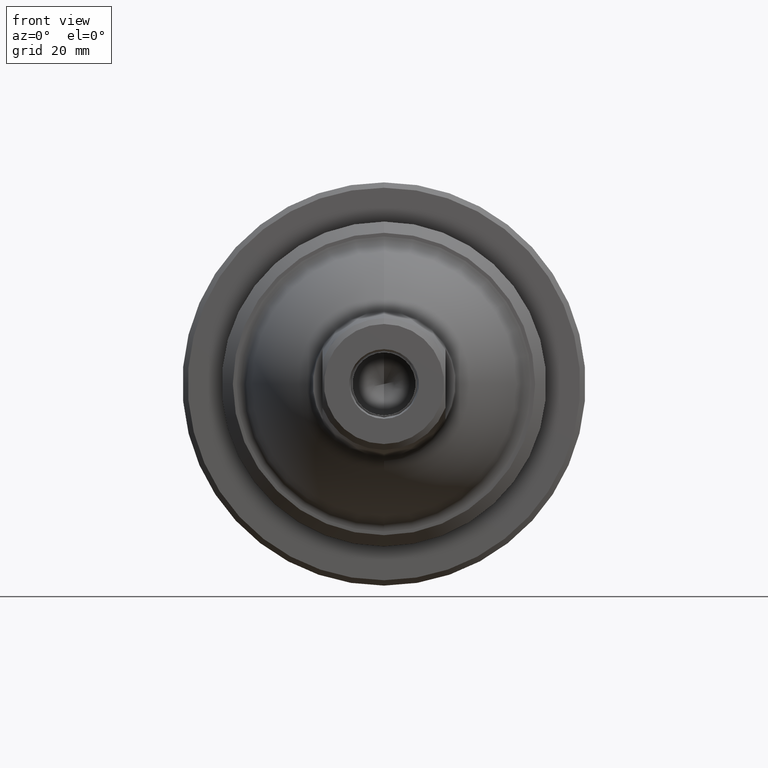
[diagram: clean part render]
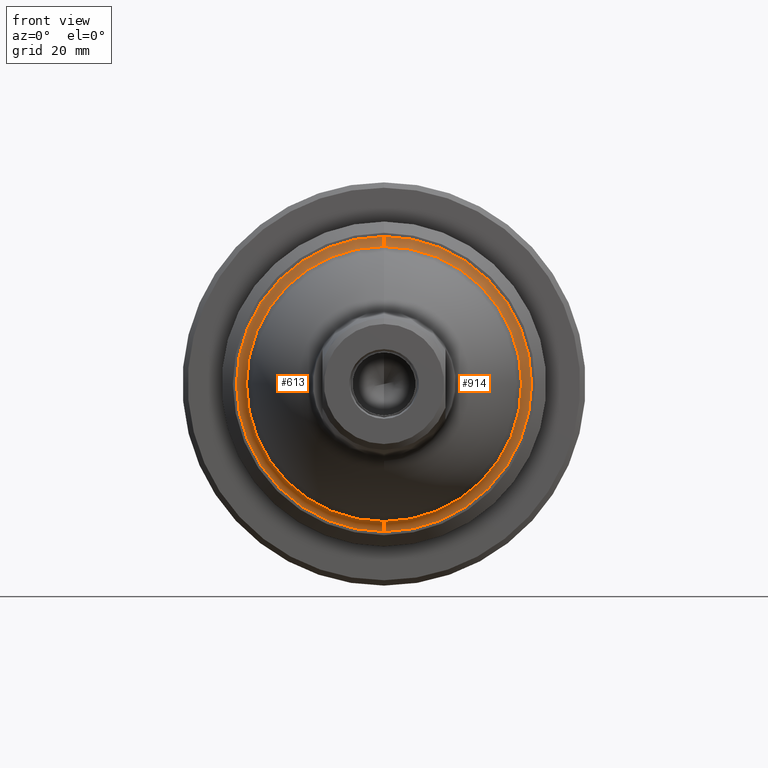
[diagram: same view with one multi-face feature highlighted, each face labeled with its STEP entity id]
A machine part, front view. The highlighted faces form ONE feature: a constant-radius fillet chain: 2 tangent blend faces with common blend radius 3.048 mm. The faces share edges in the B-rep.
Their STEP definitions:
[1] entity #914 (Torus):
#179 = CIRCLE ( 'NONE', #184, 1.646769597572671300 ) ;
#184 = AXIS2_PLACEMENT_3D ( 'NONE', #1710, #1711, #1712 ) ;
#272 = AXIS2_PLACEMENT_3D ( 'NONE', #1881, #1882, #1883 ) ;
#273 = TOROIDAL_SURFACE ( 'NONE', #272, 1.646769597572671300, 0.1199999999999992500 ) ;
#524 = EDGE_CURVE ( 'NONE', #2522, #2524, #795, .T. ) ;
#617 = EDGE_CURVE ( 'NONE', #2523, #2525, #3000, .T. ) ;
#619 = EDGE_CURVE ( 'NONE', #2525, #2524, #3002, .T. ) ;
#792 = AXIS2_PLACEMENT_3D ( 'NONE', #1212, #1213, #1214 ) ;
#795 = CIRCLE ( 'NONE', #792, 0.1199999999999992600 ) ;
#872 = EDGE_CURVE ( 'NONE', #2523, #2522, #179, .T. ) ;
#914 = ADVANCED_FACE ( 'NONE', ( #2940 ), #273, .F. ) ;
#1212 = CARTESIAN_POINT ( 'NONE',  ( 3.753073503423596600E-015, 1.690000000000000200, -1.646769597572671300 ) ) ;
#1213 = DIRECTION ( 'NONE',  ( 1.000000000000000000, -0.0000000000000000000, 1.224646799147353200E-016 ) ) ;
#1214 = DIRECTION ( 'NONE',  ( 1.224646799147355400E-016, 0.0000000000000000000, -1.000000000000000000 ) ) ;
#1472 = CARTESIAN_POINT ( 'NONE',  ( 3.551402391763542400E-015, 1.690000000000000200, 1.646769597572671300 ) ) ;
#1473 = DIRECTION ( 'NONE',  ( -1.000000000000000000, 0.0000000000000000000, 0.0000000000000000000 ) ) ;
#1474 = DIRECTION ( 'NONE',  ( 0.0000000000000000000, 0.0000000000000000000, 1.000000000000000000 ) ) ;
#1478 = CARTESIAN_POINT ( 'NONE',  ( 3.552713678800500900E-015, 1.733193974199391400, 0.0000000000000000000 ) ) ;
#1479 = DIRECTION ( 'NONE',  ( 0.0000000000000000000, 1.000000000000000000, 0.0000000000000000000 ) ) ;
#1480 = DIRECTION ( 'NONE',  ( 0.0000000000000000000, 0.0000000000000000000, 1.000000000000000000 ) ) ;
#1710 = CARTESIAN_POINT ( 'NONE',  ( 3.552713678800500900E-015, 1.809999999999999600, 0.0000000000000000000 ) ) ;
#1711 = DIRECTION ( 'NONE',  ( 0.0000000000000000000, 1.000000000000000000, 0.0000000000000000000 ) ) ;
#1712 = DIRECTION ( 'NONE',  ( 0.0000000000000000000, 0.0000000000000000000, 1.000000000000000000 ) ) ;
#1881 = CARTESIAN_POINT ( 'NONE',  ( 3.551402391763542400E-015, 1.690000000000000200, 0.0000000000000000000 ) ) ;
#1882 = DIRECTION ( 'NONE',  ( 0.0000000000000000000, 1.000000000000000000, 0.0000000000000000000 ) ) ;
#1883 = DIRECTION ( 'NONE',  ( 0.0000000000000000000, 0.0000000000000000000, 1.000000000000000000 ) ) ;
#2118 = CARTESIAN_POINT ( 'NONE',  ( 3.753073503423596600E-015, 1.809999999999999600, -1.646769597572671300 ) ) ;
#2119 = CARTESIAN_POINT ( 'NONE',  ( 3.551402391763542400E-015, 1.809999999999999600, 1.646769597572671300 ) ) ;
#2120 = CARTESIAN_POINT ( 'NONE',  ( 3.739362774071089000E-015, 1.733193974199391400, -1.534812996191323900 ) ) ;
#2121 = CARTESIAN_POINT ( 'NONE',  ( 3.551402391763542400E-015, 1.733193974199391400, 1.534812996191323900 ) ) ;
#2297 = ORIENTED_EDGE ( 'NONE', *, *, #617, .T. ) ;
#2298 = ORIENTED_EDGE ( 'NONE', *, *, #524, .F. ) ;
#2299 = ORIENTED_EDGE ( 'NONE', *, *, #872, .F. ) ;
#2301 = ORIENTED_EDGE ( 'NONE', *, *, #619, .T. ) ;
#2455 = EDGE_LOOP ( 'NONE', ( #2298, #2299, #2297, #2301 ) ) ;
#2522 = VERTEX_POINT ( 'NONE', #2118 ) ;
#2523 = VERTEX_POINT ( 'NONE', #2119 ) ;
#2524 = VERTEX_POINT ( 'NONE', #2120 ) ;
#2525 = VERTEX_POINT ( 'NONE', #2121 ) ;
#2940 = FACE_OUTER_BOUND ( 'NONE', #2455, .T. ) ;
#2969 = AXIS2_PLACEMENT_3D ( 'NONE', #1478, #1479, #1480 ) ;
#2998 = AXIS2_PLACEMENT_3D ( 'NONE', #1472, #1473, #1474 ) ;
#3000 = CIRCLE ( 'NONE', #2998, 0.1199999999999992600 ) ;
#3002 = CIRCLE ( 'NONE', #2969, 1.534812996191323900 ) ;
[2] entity #613 (Torus):
#522 = EDGE_CURVE ( 'NONE', #2524, #2525, #806, .T. ) ;
#524 = EDGE_CURVE ( 'NONE', #2522, #2524, #795, .T. ) ;
#613 = ADVANCED_FACE ( 'NONE', ( #2817 ), #2996, .F. ) ;
#616 = EDGE_CURVE ( 'NONE', #2522, #2523, #2997, .T. ) ;
#617 = EDGE_CURVE ( 'NONE', #2523, #2525, #3000, .T. ) ;
#699 = AXIS2_PLACEMENT_3D ( 'NONE', #1207, #1208, #1209 ) ;
#792 = AXIS2_PLACEMENT_3D ( 'NONE', #1212, #1213, #1214 ) ;
#795 = CIRCLE ( 'NONE', #792, 0.1199999999999992600 ) ;
#806 = CIRCLE ( 'NONE', #699, 1.534812996191323900 ) ;
#1207 = CARTESIAN_POINT ( 'NONE',  ( 3.552713678800500900E-015, 1.733193974199391400, 0.0000000000000000000 ) ) ;
#1208 = DIRECTION ( 'NONE',  ( 0.0000000000000000000, 1.000000000000000000, 0.0000000000000000000 ) ) ;
#1209 = DIRECTION ( 'NONE',  ( 0.0000000000000000000, 0.0000000000000000000, 1.000000000000000000 ) ) ;
#1212 = CARTESIAN_POINT ( 'NONE',  ( 3.753073503423596600E-015, 1.690000000000000200, -1.646769597572671300 ) ) ;
#1213 = DIRECTION ( 'NONE',  ( 1.000000000000000000, -0.0000000000000000000, 1.224646799147353200E-016 ) ) ;
#1214 = DIRECTION ( 'NONE',  ( 1.224646799147355400E-016, 0.0000000000000000000, -1.000000000000000000 ) ) ;
#1444 = CARTESIAN_POINT ( 'NONE',  ( 3.551402391763542400E-015, 1.690000000000000200, 0.0000000000000000000 ) ) ;
#1445 = DIRECTION ( 'NONE',  ( 0.0000000000000000000, 1.000000000000000000, 0.0000000000000000000 ) ) ;
#1446 = DIRECTION ( 'NONE',  ( 0.0000000000000000000, 0.0000000000000000000, 1.000000000000000000 ) ) ;
#1469 = CARTESIAN_POINT ( 'NONE',  ( 3.552713678800500900E-015, 1.809999999999999600, 0.0000000000000000000 ) ) ;
#1470 = DIRECTION ( 'NONE',  ( 0.0000000000000000000, 1.000000000000000000, 0.0000000000000000000 ) ) ;
#1471 = DIRECTION ( 'NONE',  ( 0.0000000000000000000, 0.0000000000000000000, 1.000000000000000000 ) ) ;
#1472 = CARTESIAN_POINT ( 'NONE',  ( 3.551402391763542400E-015, 1.690000000000000200, 1.646769597572671300 ) ) ;
#1473 = DIRECTION ( 'NONE',  ( -1.000000000000000000, 0.0000000000000000000, 0.0000000000000000000 ) ) ;
#1474 = DIRECTION ( 'NONE',  ( 0.0000000000000000000, 0.0000000000000000000, 1.000000000000000000 ) ) ;
#2118 = CARTESIAN_POINT ( 'NONE',  ( 3.753073503423596600E-015, 1.809999999999999600, -1.646769597572671300 ) ) ;
#2119 = CARTESIAN_POINT ( 'NONE',  ( 3.551402391763542400E-015, 1.809999999999999600, 1.646769597572671300 ) ) ;
#2120 = CARTESIAN_POINT ( 'NONE',  ( 3.739362774071089000E-015, 1.733193974199391400, -1.534812996191323900 ) ) ;
#2121 = CARTESIAN_POINT ( 'NONE',  ( 3.551402391763542400E-015, 1.733193974199391400, 1.534812996191323900 ) ) ;
#2226 = EDGE_LOOP ( 'NONE', ( #2485, #2484, #2482, #2483 ) ) ;
#2482 = ORIENTED_EDGE ( 'NONE', *, *, #522, .T. ) ;
#2483 = ORIENTED_EDGE ( 'NONE', *, *, #617, .F. ) ;
#2484 = ORIENTED_EDGE ( 'NONE', *, *, #524, .T. ) ;
#2485 = ORIENTED_EDGE ( 'NONE', *, *, #616, .F. ) ;
#2522 = VERTEX_POINT ( 'NONE', #2118 ) ;
#2523 = VERTEX_POINT ( 'NONE', #2119 ) ;
#2524 = VERTEX_POINT ( 'NONE', #2120 ) ;
#2525 = VERTEX_POINT ( 'NONE', #2121 ) ;
#2817 = FACE_OUTER_BOUND ( 'NONE', #2226, .T. ) ;
#2996 = TOROIDAL_SURFACE ( 'NONE', #3001, 1.646769597572671300, 0.1199999999999992500 ) ;
#2997 = CIRCLE ( 'NONE', #3004, 1.646769597572671300 ) ;
#2998 = AXIS2_PLACEMENT_3D ( 'NONE', #1472, #1473, #1474 ) ;
#3000 = CIRCLE ( 'NONE', #2998, 0.1199999999999992600 ) ;
#3001 = AXIS2_PLACEMENT_3D ( 'NONE', #1444, #1445, #1446 ) ;
#3004 = AXIS2_PLACEMENT_3D ( 'NONE', #1469, #1470, #1471 ) ;